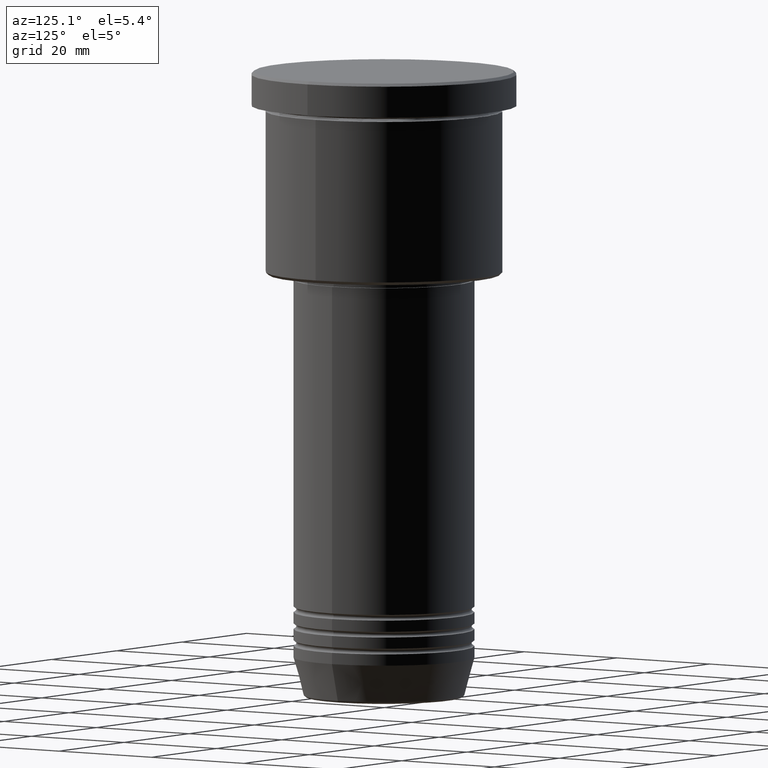
[diagram: clean part render]
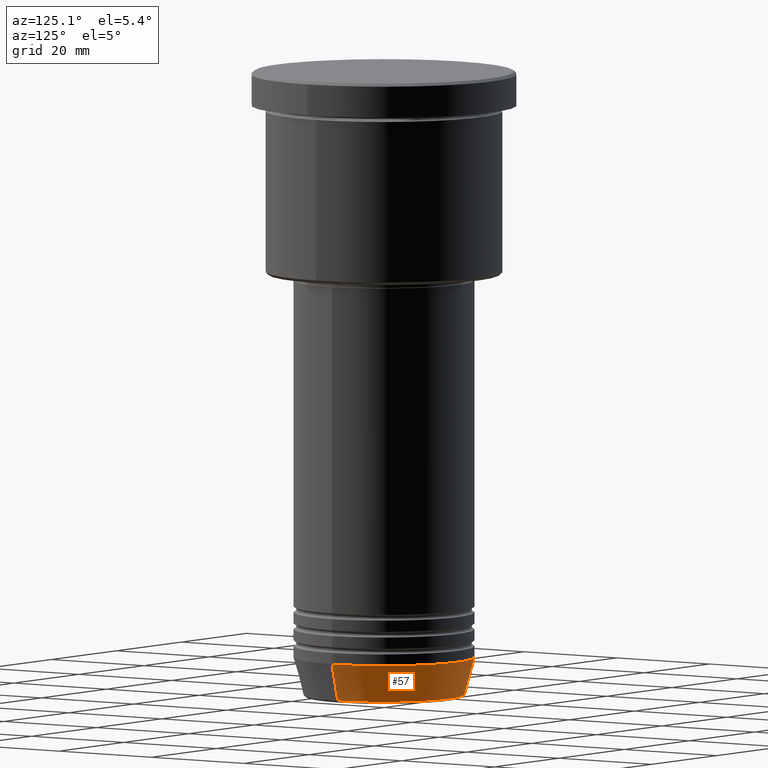
[diagram: same view with one face highlighted and labeled with its STEP entity id]
A machine part, auxiliary view. The second image highlights one B-rep face of the part: STEP entity #57.
In plain terms, the highlighted conical surface has half-angle 15 deg.
Its self-contained STEP definition (entity closure, byte-faithful):
#42 = AXIS2_PLACEMENT_3D ( 'NONE', #847, #939, #276 ) ;
#47 = CARTESIAN_POINT ( 'NONE',  ( 0.000000000000000000, 0.000000000000000000, -104.0000000000000142 ) ) ;
#57 = ADVANCED_FACE ( 'NONE', ( #777 ), #466, .T. ) ;
#60 = VECTOR ( 'NONE', #1085, 1000.000000000000000 ) ;
#104 = CARTESIAN_POINT ( 'NONE',  ( -14.22365507213719305, 1.850665122131323731E-15, -110.6294095225512706 ) ) ;
#110 = CARTESIAN_POINT ( 'NONE',  ( -16.00000000000000000, 1.959434878635765131E-15, -104.0000000000000142 ) ) ;
#116 = ORIENTED_EDGE ( 'NONE', *, *, #726, .T. ) ;
#143 = AXIS2_PLACEMENT_3D ( 'NONE', #47, #414, #333 ) ;
#214 = ORIENTED_EDGE ( 'NONE', *, *, #923, .F. ) ;
#218 = ORIENTED_EDGE ( 'NONE', *, *, #375, .T. ) ;
#221 = CIRCLE ( 'NONE', #892, 14.22365507213719305 ) ;
#276 = DIRECTION ( 'NONE',  ( 1.000000000000000000, 0.000000000000000000, 0.000000000000000000 ) ) ;
#309 = VERTEX_POINT ( 'NONE', #110 ) ;
#333 = DIRECTION ( 'NONE',  ( 1.000000000000000000, 0.000000000000000000, 0.000000000000000000 ) ) ;
#375 = EDGE_CURVE ( 'NONE', #729, #309, #556, .T. ) ;
#394 = EDGE_LOOP ( 'NONE', ( #116, #218, #975, #214 ) ) ;
#414 = DIRECTION ( 'NONE',  ( -0.000000000000000000, -0.000000000000000000, 1.000000000000000000 ) ) ;
#452 = VERTEX_POINT ( 'NONE', #552 ) ;
#466 = CONICAL_SURFACE ( 'NONE', #143, 16.00000000000000000, 0.2617993877991500740 ) ;
#552 = CARTESIAN_POINT ( 'NONE',  ( 16.00000000000000000, 0.000000000000000000, -104.0000000000000142 ) ) ;
#556 = LINE ( 'NONE', #568, #1073 ) ;
#568 = CARTESIAN_POINT ( 'NONE',  ( -16.00000000000000000, 1.959434878635765131E-15, -104.0000000000000142 ) ) ;
#571 = DIRECTION ( 'NONE',  ( -0.000000000000000000, -0.000000000000000000, 1.000000000000000000 ) ) ;
#706 = VERTEX_POINT ( 'NONE', #1032 ) ;
#726 = EDGE_CURVE ( 'NONE', #706, #729, #221, .T. ) ;
#729 = VERTEX_POINT ( 'NONE', #104 ) ;
#771 = CARTESIAN_POINT ( 'NONE',  ( 0.000000000000000000, 0.000000000000000000, -110.6294095225512706 ) ) ;
#777 = FACE_OUTER_BOUND ( 'NONE', #394, .T. ) ;
#819 = CIRCLE ( 'NONE', #42, 16.00000000000000000 ) ;
#821 = LINE ( 'NONE', #1171, #60 ) ;
#847 = CARTESIAN_POINT ( 'NONE',  ( 0.000000000000000000, 0.000000000000000000, -104.0000000000000142 ) ) ;
#892 = AXIS2_PLACEMENT_3D ( 'NONE', #771, #571, #1013 ) ;
#921 = DIRECTION ( 'NONE',  ( -0.2588190451025213501, 3.169619151431772337E-17, 0.9659258262890680902 ) ) ;
#923 = EDGE_CURVE ( 'NONE', #706, #452, #821, .T. ) ;
#939 = DIRECTION ( 'NONE',  ( -0.000000000000000000, -0.000000000000000000, 1.000000000000000000 ) ) ;
#975 = ORIENTED_EDGE ( 'NONE', *, *, #978, .F. ) ;
#978 = EDGE_CURVE ( 'NONE', #452, #309, #819, .T. ) ;
#1013 = DIRECTION ( 'NONE',  ( 1.000000000000000000, 0.000000000000000000, 0.000000000000000000 ) ) ;
#1032 = CARTESIAN_POINT ( 'NONE',  ( 14.22365507213719305, 0.000000000000000000, -110.6294095225512706 ) ) ;
#1073 = VECTOR ( 'NONE', #921, 1000.000000000000000 ) ;
#1085 = DIRECTION ( 'NONE',  ( 0.2588190451025213501, 0.000000000000000000, 0.9659258262890680902 ) ) ;
#1171 = CARTESIAN_POINT ( 'NONE',  ( 16.00000000000000000, 0.000000000000000000, -104.0000000000000142 ) ) ;